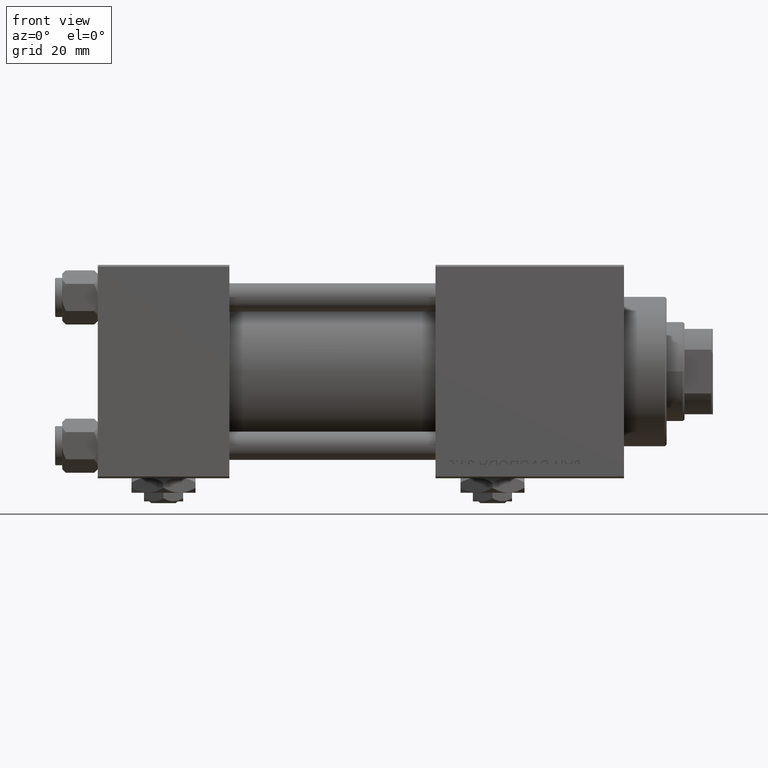
[diagram: clean part render]
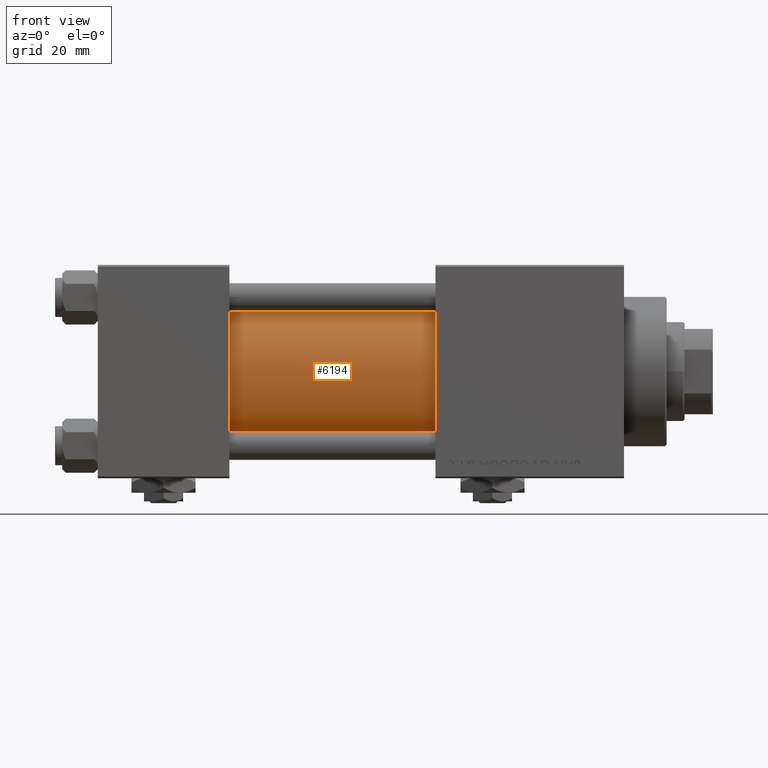
[diagram: same view with one face highlighted and labeled with its STEP entity id]
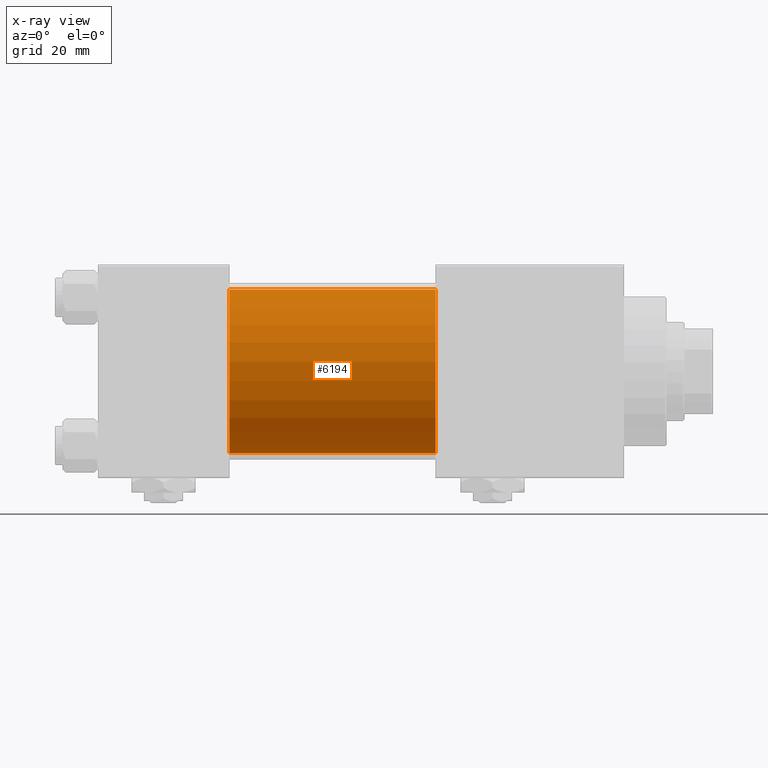
[diagram: x-ray of the same camera — body ghosted, the highlighted face saturated]
A machine part, front view. The second image highlights one B-rep face of the part: STEP entity #6194.
The next image is the same camera in x-ray: the body ghosted, the highlighted face saturated — about 1% of this face is hidden behind the body in this view.
In plain terms, the highlighted cylindrical surface (partial cylindrical patch) has radius 23 mm, axis along (-1, -0, -0).
Its self-contained STEP definition (entity closure, byte-faithful):
#1237 = CARTESIAN_POINT ( 'NONE',  ( 95.00000000000000000, 2.146024240737012665E-16, -23.00000000000000000 ) ) ;
#1485 = FACE_OUTER_BOUND ( 'NONE', #30973, .T. ) ;
#2433 = ORIENTED_EDGE ( 'NONE', *, *, #15244, .T. ) ;
#2639 = CARTESIAN_POINT ( 'NONE',  ( 95.00000000000000000, -2.602085213965210642E-15, 0.000000000000000000 ) ) ;
#3145 = VERTEX_POINT ( 'NONE', #38976 ) ;
#3298 = AXIS2_PLACEMENT_3D ( 'NONE', #5650, #33671, #49785 ) ;
#3408 = DIRECTION ( 'NONE',  ( 1.000000000000000000, 0.000000000000000000, 0.000000000000000000 ) ) ;
#5650 = CARTESIAN_POINT ( 'NONE',  ( 37.00000000000000000, -2.602085213965210642E-15, 0.000000000000000000 ) ) ;
#5836 = CIRCLE ( 'NONE', #3298, 23.00000000000000000 ) ;
#6194 = ADVANCED_FACE ( 'NONE', ( #1485 ), #17601, .T. ) ;
#6288 = CARTESIAN_POINT ( 'NONE',  ( 95.00000000000000000, 2.146024240737012665E-16, -23.00000000000000000 ) ) ;
#8937 = ORIENTED_EDGE ( 'NONE', *, *, #38255, .F. ) ;
#10021 = CARTESIAN_POINT ( 'NONE',  ( 95.00000000000000000, -2.602085213965210642E-15, 23.00000000000000000 ) ) ;
#11505 = EDGE_CURVE ( 'NONE', #18659, #39505, #37466, .T. ) ;
#14532 = DIRECTION ( 'NONE',  ( 0.000000000000000000, 0.000000000000000000, -1.000000000000000000 ) ) ;
#15244 = EDGE_CURVE ( 'NONE', #3145, #39505, #5836, .T. ) ;
#15754 = CARTESIAN_POINT ( 'NONE',  ( 37.00000000000000000, 2.146024240737012665E-16, -23.00000000000000000 ) ) ;
#17601 = CYLINDRICAL_SURFACE ( 'NONE', #44438, 23.00000000000000000 ) ;
#18651 = CARTESIAN_POINT ( 'NONE',  ( 95.00000000000000000, -2.602085213965210642E-15, 23.00000000000000000 ) ) ;
#18659 = VERTEX_POINT ( 'NONE', #6288 ) ;
#20003 = VECTOR ( 'NONE', #24247, 1000.000000000000000 ) ;
#21585 = CIRCLE ( 'NONE', #35927, 23.00000000000000000 ) ;
#23879 = ORIENTED_EDGE ( 'NONE', *, *, #27961, .T. ) ;
#24247 = DIRECTION ( 'NONE',  ( -1.000000000000000000, -0.000000000000000000, -0.000000000000000000 ) ) ;
#26595 = DIRECTION ( 'NONE',  ( -1.000000000000000000, -0.000000000000000000, -0.000000000000000000 ) ) ;
#27961 = EDGE_CURVE ( 'NONE', #37660, #3145, #34800, .T. ) ;
#30973 = EDGE_LOOP ( 'NONE', ( #37628, #8937, #23879, #2433 ) ) ;
#33671 = DIRECTION ( 'NONE',  ( 1.000000000000000000, -0.000000000000000000, 0.000000000000000000 ) ) ;
#33748 = DIRECTION ( 'NONE',  ( 0.000000000000000000, 0.000000000000000000, 1.000000000000000000 ) ) ;
#34800 = LINE ( 'NONE', #18651, #48343 ) ;
#35927 = AXIS2_PLACEMENT_3D ( 'NONE', #2639, #3408, #14532 ) ;
#37447 = CARTESIAN_POINT ( 'NONE',  ( 95.00000000000000000, -2.602085213965210642E-15, 0.000000000000000000 ) ) ;
#37466 = LINE ( 'NONE', #1237, #20003 ) ;
#37628 = ORIENTED_EDGE ( 'NONE', *, *, #11505, .F. ) ;
#37660 = VERTEX_POINT ( 'NONE', #10021 ) ;
#38255 = EDGE_CURVE ( 'NONE', #37660, #18659, #21585, .T. ) ;
#38976 = CARTESIAN_POINT ( 'NONE',  ( 37.00000000000000000, -2.602085213965210642E-15, 23.00000000000000000 ) ) ;
#39505 = VERTEX_POINT ( 'NONE', #15754 ) ;
#44438 = AXIS2_PLACEMENT_3D ( 'NONE', #37447, #49590, #33748 ) ;
#48343 = VECTOR ( 'NONE', #26595, 1000.000000000000000 ) ;
#49590 = DIRECTION ( 'NONE',  ( -1.000000000000000000, -0.000000000000000000, -0.000000000000000000 ) ) ;
#49785 = DIRECTION ( 'NONE',  ( 0.000000000000000000, 0.000000000000000000, 1.000000000000000000 ) ) ;